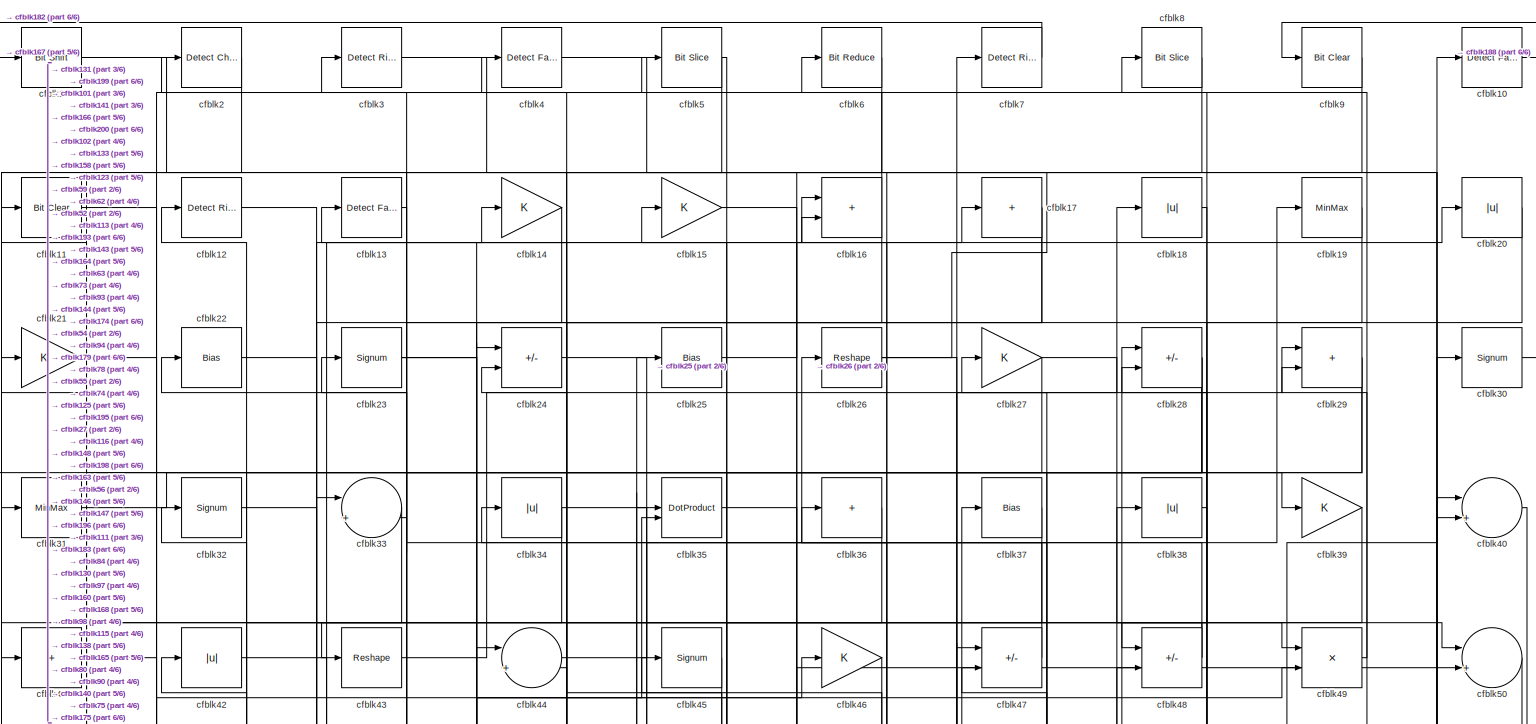
[diagram: root canvas - part 1/6, full width, top band]
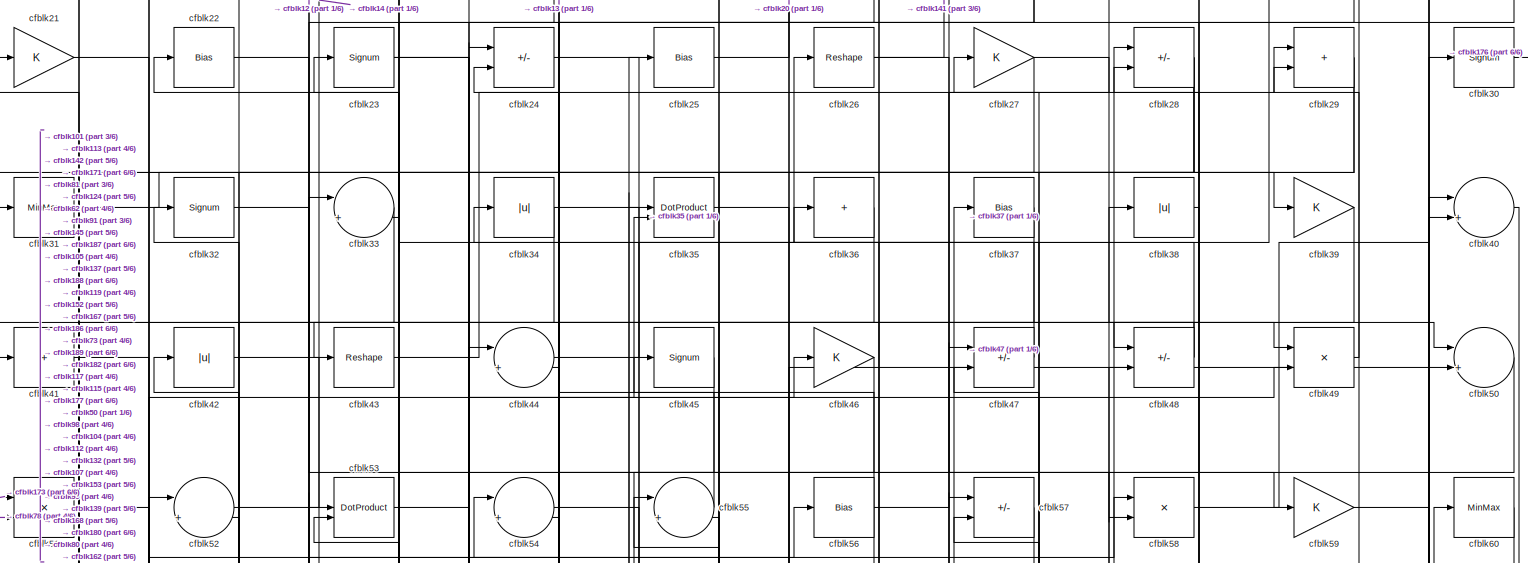
[diagram: root canvas - part 2/6, full width, top band]
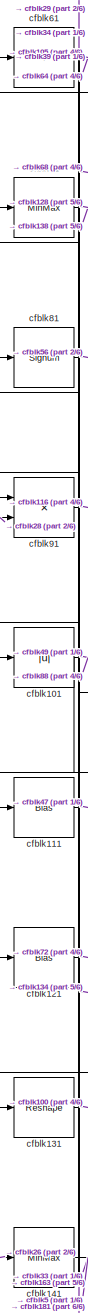
[diagram: root canvas - part 3/6, middle left region]
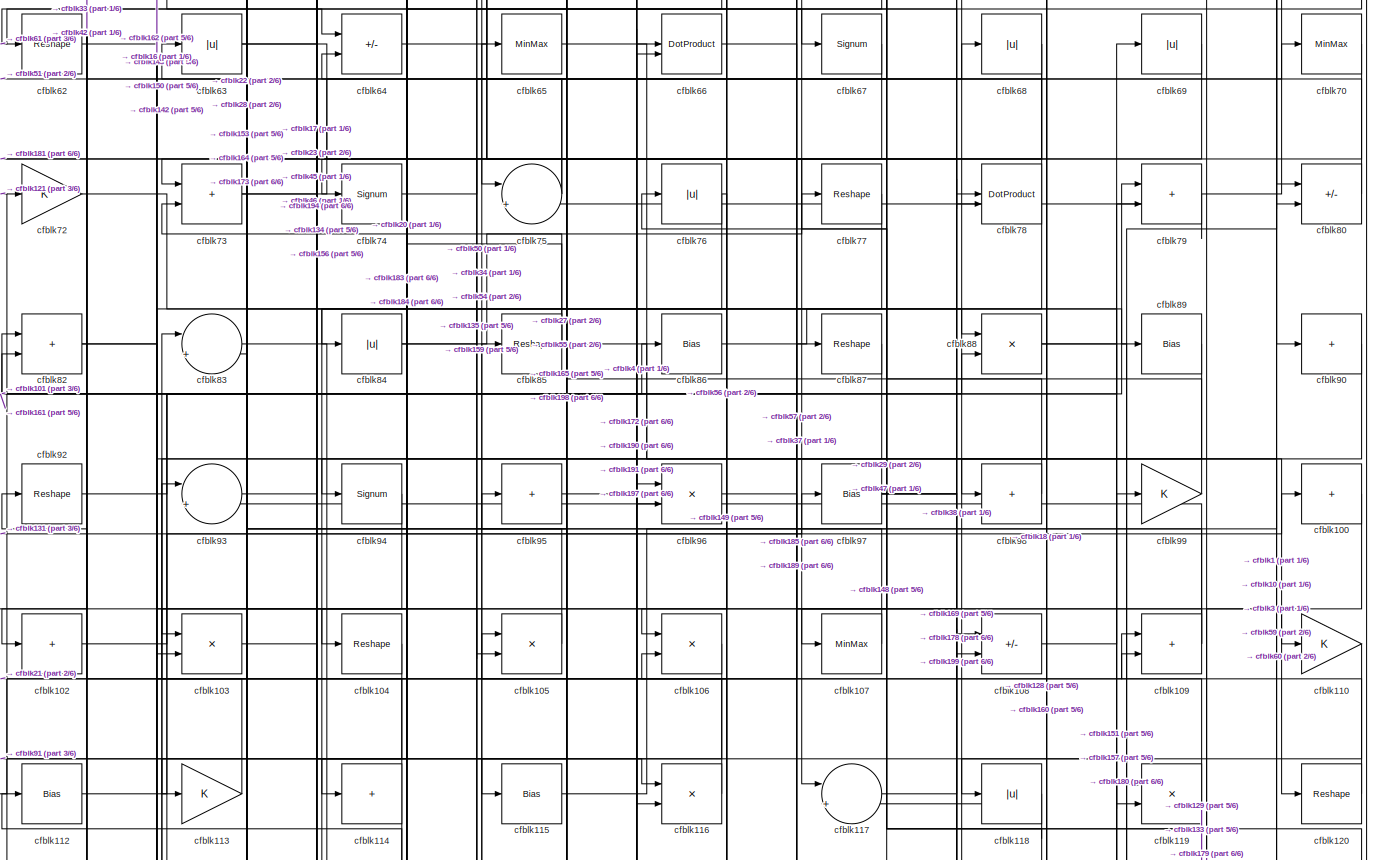
[diagram: root canvas - part 4/6, full width, middle band]
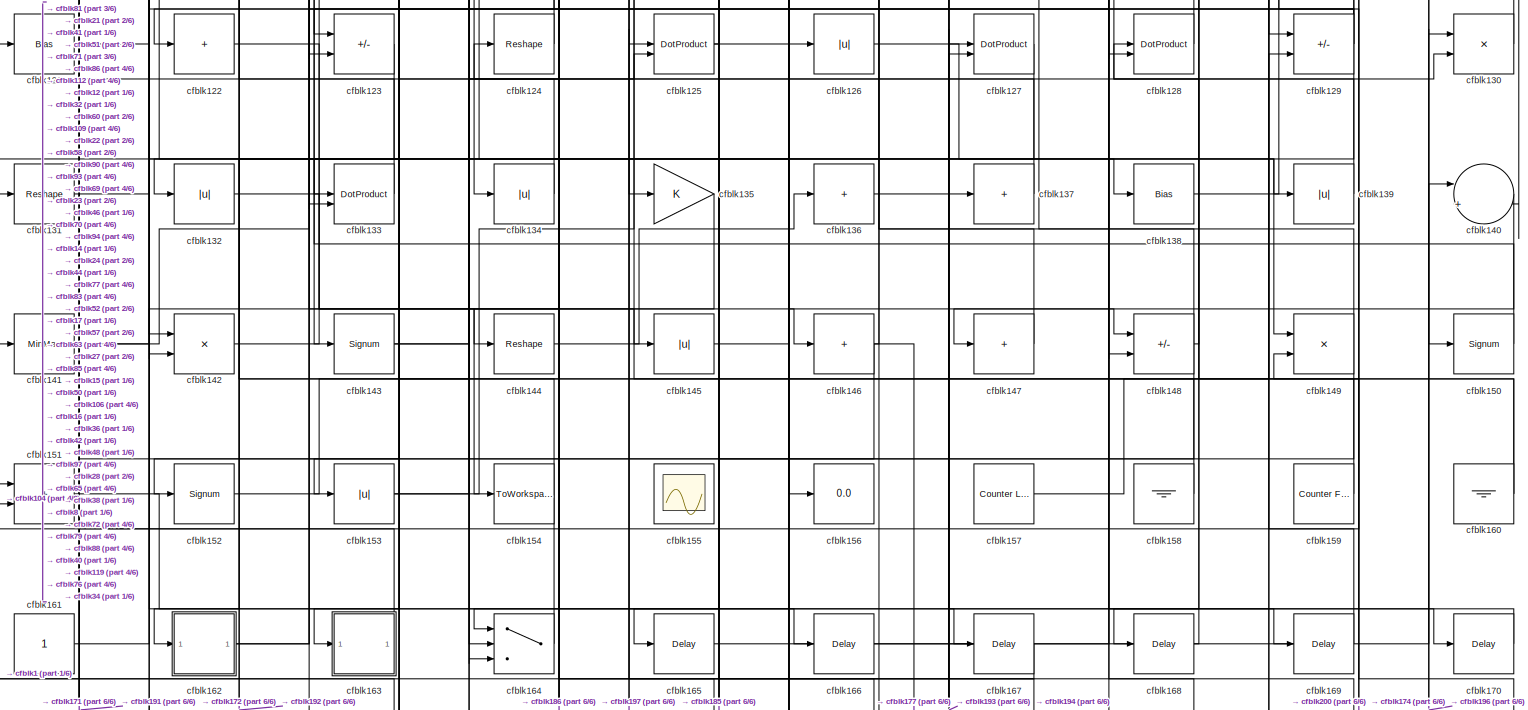
[diagram: root canvas - part 5/6, full width, bottom band]
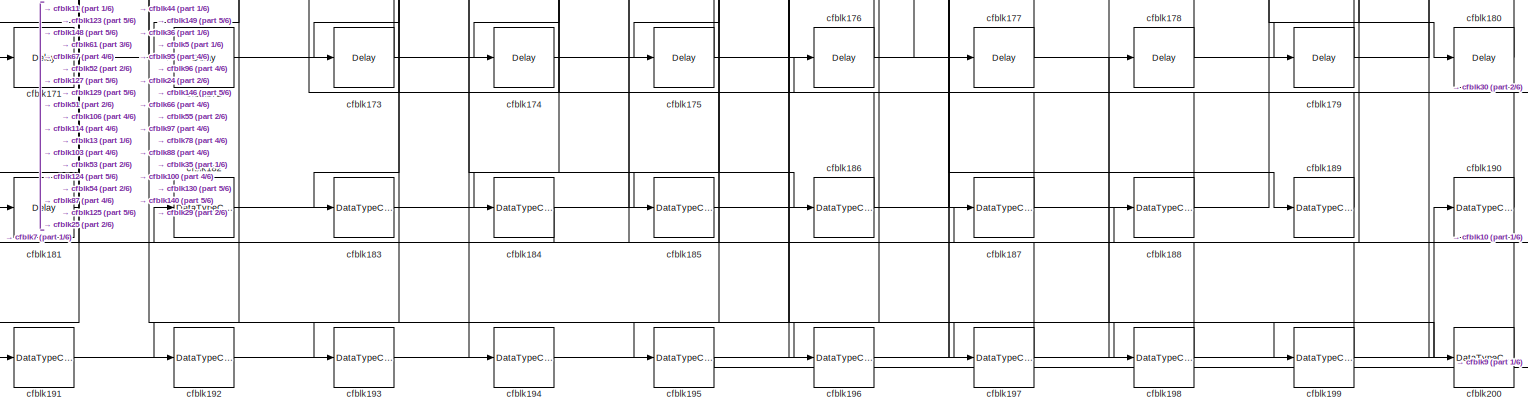
[diagram: root canvas - part 6/6, full width, bottom band]
MODEL slx_1e0d9b794514
KIND model
CONFIG AbsTol = auto
CONFIG EnableMultiTasking = off
CONFIG FixedStep = auto
CONFIG MaxStep = auto
CONFIG MinStep = auto
CONFIG RelTol = 1e-3
CONFIG SampleTimeConstraint = Unconstrained
CONFIG SolverName = VariableStepAuto
CONFIG StartTime = 0.0
CONFIG StopTime = 10.0
BLOCK [Reference] cfblk1  REF=hdlsllib/Logic and Bit
Operations/Bit Shift
  SourceBlock = hdlsllib/Logic and Bit\nOperations/Bit Shift
  SourceType = Bit Shift
BLOCK [Reference] cfblk10  REF=hdlsllib/Logic and Bit
Operations/Detect Fall
Nonpositive
  SourceBlock = hdlsllib/Logic and Bit\nOperations/Detect Fall\nNonpositive
  SourceType = Detect Fall Nonpositive
BLOCK [Sum] cfblk100
  IconShape = rectangular
  Inputs = +
BLOCK [Abs] cfblk101
  SaturateOnIntegerOverflow = off
BLOCK [Sum] cfblk102
  IconShape = rectangular
  Inputs = +
BLOCK [Product] cfblk103
  Inputs = */
  RndMeth = Zero
  SaturateOnIntegerOverflow = on
BLOCK [Reshape] cfblk104
BLOCK [Product] cfblk105
  Inputs = */
  RndMeth = Zero
  SaturateOnIntegerOverflow = on
BLOCK [Product] cfblk106
  Inputs = */
  RndMeth = Zero
  SaturateOnIntegerOverflow = on
BLOCK [MinMax] cfblk107
BLOCK [Sum] cfblk108
  IconShape = rectangular
  Inputs = +-
BLOCK [Sum] cfblk109
  IconShape = rectangular
BLOCK [Reference] cfblk11  REF=simulink/Logic and Bit
Operations/Bit Clear
  LibrarySourceBlock = hdlsllib/Logic and Bit\nOperations/Bit Clear
  SourceBlock = simulink/Logic and Bit\nOperations/Bit Clear
  SourceType = Bit Clear
BLOCK [Gain] cfblk110
BLOCK [Bias] cfblk111
  Bias = 0.0
  SaturateOnIntegerOverflow = off
BLOCK [Bias] cfblk112
  Bias = 0.0
  SaturateOnIntegerOverflow = off
BLOCK [Gain] cfblk113
BLOCK [Sum] cfblk114
  IconShape = rectangular
  Inputs = +
BLOCK [Bias] cfblk115
  Bias = 0.0
  SaturateOnIntegerOverflow = off
BLOCK [Product] cfblk116
  Inputs = */
  RndMeth = Zero
  SaturateOnIntegerOverflow = on
BLOCK [Sum] cfblk117
  Inputs = |++
BLOCK [Abs] cfblk118
  SaturateOnIntegerOverflow = off
BLOCK [Product] cfblk119
  Inputs = */
  RndMeth = Zero
  SaturateOnIntegerOverflow = on
BLOCK [Reference] cfblk12  REF=hdlsllib/Logic and Bit
Operations/Detect Rise
Nonnegative
  SourceBlock = hdlsllib/Logic and Bit\nOperations/Detect Rise\nNonnegative
  SourceType = Detect Rise Nonnegative
BLOCK [Reshape] cfblk120
BLOCK [Bias] cfblk121
  Bias = 0.0
  SaturateOnIntegerOverflow = off
BLOCK [Sum] cfblk122
  IconShape = rectangular
  Inputs = +
BLOCK [Sum] cfblk123
  IconShape = rectangular
  Inputs = +-
BLOCK [Reshape] cfblk124
BLOCK [DotProduct] cfblk125
  OutDataTypeStr = Inherit: Inherit via internal rule
BLOCK [Abs] cfblk126
  SaturateOnIntegerOverflow = off
BLOCK [DotProduct] cfblk127
  OutDataTypeStr = Inherit: Inherit via internal rule
BLOCK [DotProduct] cfblk128
  OutDataTypeStr = Inherit: Inherit via internal rule
BLOCK [Sum] cfblk129
  IconShape = rectangular
  Inputs = +-
BLOCK [Reference] cfblk13  REF=hdlsllib/Logic and Bit
Operations/Detect Fall
Nonpositive
  SourceBlock = hdlsllib/Logic and Bit\nOperations/Detect Fall\nNonpositive
  SourceType = Detect Fall Nonpositive
BLOCK [Product] cfblk130
  Inputs = */
  RndMeth = Zero
  SaturateOnIntegerOverflow = on
BLOCK [Reshape] cfblk131
BLOCK [Abs] cfblk132
  SaturateOnIntegerOverflow = off
BLOCK [DotProduct] cfblk133
  OutDataTypeStr = Inherit: Inherit via internal rule
BLOCK [Abs] cfblk134
  SaturateOnIntegerOverflow = off
BLOCK [Gain] cfblk135
BLOCK [Sum] cfblk136
  IconShape = rectangular
  Inputs = +
BLOCK [Sum] cfblk137
  IconShape = rectangular
  Inputs = +
BLOCK [Bias] cfblk138
  Bias = 0.0
  SaturateOnIntegerOverflow = off
BLOCK [Abs] cfblk139
  SaturateOnIntegerOverflow = off
BLOCK [Gain] cfblk14
BLOCK [Sum] cfblk140
  Inputs = |++
BLOCK [MinMax] cfblk141
BLOCK [Product] cfblk142
  Inputs = */
  RndMeth = Zero
  SaturateOnIntegerOverflow = on
BLOCK [Signum] cfblk143
BLOCK [Reshape] cfblk144
BLOCK [Abs] cfblk145
  SaturateOnIntegerOverflow = off
BLOCK [Sum] cfblk146
  IconShape = rectangular
  Inputs = +
BLOCK [Sum] cfblk147
  IconShape = rectangular
  Inputs = +
BLOCK [Sum] cfblk148
  IconShape = rectangular
  Inputs = +-
BLOCK [Product] cfblk149
  Inputs = */
  RndMeth = Zero
  SaturateOnIntegerOverflow = on
BLOCK [Gain] cfblk15
BLOCK [Signum] cfblk150
BLOCK [Sum] cfblk151
  IconShape = rectangular
BLOCK [Signum] cfblk152
BLOCK [Abs] cfblk153
  SaturateOnIntegerOverflow = off
BLOCK [ToWorkspace] cfblk154
  MaxDataPoints = inf
  SampleTime = -1
  SaveFormat = Timeseries
  VariableName = simout
BLOCK [Scope] cfblk155
  Floating = on
  NumInputPorts = 1
  ScopeSpecificationString = Simulink.scopes.TimeScopeBlockCfg('CurrentConfiguration', extmgr.ConfigurationSet(extmgr.Configuration('Core','General UI',true,'FigureColor',[0.156862745098039 0.156862745098039 0.156862745098039]),extmgr.Configuration('Core','Source UI',true),extmgr.Configuration('Sources','WiredSimulink',true,'DataLoggingVariableName','ScopeData1','DataLoggingSaveFormat','StructureWithTime','DataLoggingLimitDat...<+2713ch>
BLOCK [Display] cfblk156
  Decimation = 1
BLOCK [Reference] cfblk157  REF=hdlsllib/Sources/Counter
Limited
  SourceBlock = hdlsllib/Sources/Counter\nLimited
  SourceType = Counter Limited
BLOCK [Ground] cfblk158
BLOCK [Reference] cfblk159  REF=hdlsllib/Sources/Counter
Free-Running
  SourceBlock = hdlsllib/Sources/Counter\nFree-Running
  SourceType = Counter Free-Running
BLOCK [Sum] cfblk16
  IconShape = rectangular
BLOCK [Ground] cfblk160
BLOCK [Constant] cfblk161
  SampleTime = -1
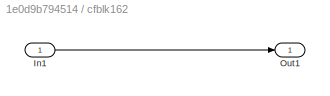
BLOCK [SubSystem] cfblk162
  LibrarySourceBlock = hdlsllib/Ports &\nSubsystems/Subsystem
BLOCK [Inport] cfblk162/In1
BLOCK [Outport] cfblk162/Out1
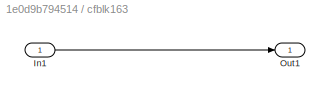
BLOCK [SubSystem] cfblk163
  LibrarySourceBlock = hdlsllib/Ports &\nSubsystems/Subsystem
BLOCK [Inport] cfblk163/In1
BLOCK [Outport] cfblk163/Out1
BLOCK [Switch] cfblk164
  InputSameDT = off
  SaturateOnIntegerOverflow = off
BLOCK [Delay] cfblk165
  InputPortMap = u0
  SampleTime = 1
BLOCK [Delay] cfblk166
  InputPortMap = u0
  SampleTime = 1
BLOCK [Delay] cfblk167
  InputPortMap = u0
  SampleTime = 1
BLOCK [Delay] cfblk168
  InputPortMap = u0
  SampleTime = 1
BLOCK [Delay] cfblk169
  InputPortMap = u0
  SampleTime = 1
BLOCK [Sum] cfblk17
  IconShape = rectangular
  Inputs = +
BLOCK [Delay] cfblk170
  InputPortMap = u0
  SampleTime = 1
BLOCK [Delay] cfblk171
  InputPortMap = u0
  SampleTime = 1
BLOCK [Delay] cfblk172
  InputPortMap = u0
  SampleTime = 1
BLOCK [Delay] cfblk173
  InputPortMap = u0
  SampleTime = 1
BLOCK [Delay] cfblk174
  InputPortMap = u0
  SampleTime = 1
BLOCK [Delay] cfblk175
  InputPortMap = u0
  SampleTime = 1
BLOCK [Delay] cfblk176
  InputPortMap = u0
  SampleTime = 1
BLOCK [Delay] cfblk177
  InputPortMap = u0
  SampleTime = 1
BLOCK [Delay] cfblk178
  InputPortMap = u0
  SampleTime = 1
BLOCK [Delay] cfblk179
  InputPortMap = u0
  SampleTime = 1
BLOCK [Abs] cfblk18
  SaturateOnIntegerOverflow = off
BLOCK [Delay] cfblk180
  InputPortMap = u0
  SampleTime = 1
BLOCK [Delay] cfblk181
  InputPortMap = u0
  SampleTime = 1
BLOCK [DataTypeConversion] cfblk182
  OutDataTypeStr = uint8
  RndMeth = Floor
  SaturateOnIntegerOverflow = off
BLOCK [DataTypeConversion] cfblk183
  OutDataTypeStr = uint8
  RndMeth = Floor
  SaturateOnIntegerOverflow = off
BLOCK [DataTypeConversion] cfblk184
  OutDataTypeStr = uint8
  RndMeth = Floor
  SaturateOnIntegerOverflow = off
BLOCK [DataTypeConversion] cfblk185
  OutDataTypeStr = uint8
  RndMeth = Floor
  SaturateOnIntegerOverflow = off
BLOCK [DataTypeConversion] cfblk186
  RndMeth = Floor
  SaturateOnIntegerOverflow = off
BLOCK [DataTypeConversion] cfblk187
  OutDataTypeStr = uint8
  RndMeth = Floor
  SaturateOnIntegerOverflow = off
BLOCK [DataTypeConversion] cfblk188
  OutDataTypeStr = uint8
  RndMeth = Floor
  SaturateOnIntegerOverflow = off
BLOCK [DataTypeConversion] cfblk189
  OutDataTypeStr = uint8
  RndMeth = Floor
  SaturateOnIntegerOverflow = off
BLOCK [MinMax] cfblk19
BLOCK [DataTypeConversion] cfblk190
  OutDataTypeStr = uint8
  RndMeth = Floor
  SaturateOnIntegerOverflow = off
BLOCK [DataTypeConversion] cfblk191
  OutDataTypeStr = uint8
  RndMeth = Floor
  SaturateOnIntegerOverflow = off
BLOCK [DataTypeConversion] cfblk192
  RndMeth = Floor
  SaturateOnIntegerOverflow = off
BLOCK [DataTypeConversion] cfblk193
  OutDataTypeStr = uint8
  RndMeth = Floor
  SaturateOnIntegerOverflow = off
BLOCK [DataTypeConversion] cfblk194
  OutDataTypeStr = uint8
  RndMeth = Floor
  SaturateOnIntegerOverflow = off
BLOCK [DataTypeConversion] cfblk195
  OutDataTypeStr = boolean
  RndMeth = Floor
  SaturateOnIntegerOverflow = off
BLOCK [DataTypeConversion] cfblk196
  OutDataTypeStr = uint8
  RndMeth = Floor
  SaturateOnIntegerOverflow = off
BLOCK [DataTypeConversion] cfblk197
  OutDataTypeStr = uint8
  RndMeth = Floor
  SaturateOnIntegerOverflow = off
BLOCK [DataTypeConversion] cfblk198
  OutDataTypeStr = uint8
  RndMeth = Floor
  SaturateOnIntegerOverflow = off
BLOCK [DataTypeConversion] cfblk199
  OutDataTypeStr = boolean
  RndMeth = Floor
  SaturateOnIntegerOverflow = off
BLOCK [Reference] cfblk2  REF=simulink/Logic and Bit
Operations/Detect
Change
  LibrarySourceBlock = hdlsllib/Logic and Bit\nOperations/Detect\nChange
  SourceBlock = simulink/Logic and Bit\nOperations/Detect\nChange
  SourceType = Detect Change
BLOCK [Abs] cfblk20
  SaturateOnIntegerOverflow = off
BLOCK [DataTypeConversion] cfblk200
  OutDataTypeStr = uint8
  RndMeth = Floor
  SaturateOnIntegerOverflow = off
BLOCK [Gain] cfblk21
BLOCK [Bias] cfblk22
  Bias = 0.0
  SaturateOnIntegerOverflow = off
BLOCK [Signum] cfblk23
BLOCK [Sum] cfblk24
  IconShape = rectangular
  Inputs = +-
BLOCK [Bias] cfblk25
  Bias = 0.0
  SaturateOnIntegerOverflow = off
BLOCK [Reshape] cfblk26
BLOCK [Gain] cfblk27
BLOCK [Sum] cfblk28
  IconShape = rectangular
  Inputs = +-
BLOCK [Sum] cfblk29
  IconShape = rectangular
BLOCK [Reference] cfblk3  REF=hdlsllib/Logic and Bit
Operations/Detect Rise
Nonnegative
  SourceBlock = hdlsllib/Logic and Bit\nOperations/Detect Rise\nNonnegative
  SourceType = Detect Rise Nonnegative
BLOCK [Signum] cfblk30
BLOCK [MinMax] cfblk31
BLOCK [Signum] cfblk32
BLOCK [Sum] cfblk33
  Inputs = |++
BLOCK [Abs] cfblk34
  SaturateOnIntegerOverflow = off
BLOCK [DotProduct] cfblk35
  OutDataTypeStr = Inherit: Inherit via internal rule
BLOCK [Sum] cfblk36
  IconShape = rectangular
  Inputs = +
BLOCK [Bias] cfblk37
  Bias = 0.0
  SaturateOnIntegerOverflow = off
BLOCK [Abs] cfblk38
  SaturateOnIntegerOverflow = off
BLOCK [Gain] cfblk39
BLOCK [Reference] cfblk4  REF=hdlsllib/Logic and Bit
Operations/Detect Fall
Nonpositive
  SourceBlock = hdlsllib/Logic and Bit\nOperations/Detect Fall\nNonpositive
  SourceType = Detect Fall Nonpositive
BLOCK [Sum] cfblk40
  Inputs = |++
BLOCK [Sum] cfblk41
  IconShape = rectangular
  Inputs = +
BLOCK [Abs] cfblk42
  SaturateOnIntegerOverflow = off
BLOCK [Reshape] cfblk43
BLOCK [Sum] cfblk44
  Inputs = |++
BLOCK [Signum] cfblk45
BLOCK [Gain] cfblk46
BLOCK [Sum] cfblk47
  IconShape = rectangular
  Inputs = +-
BLOCK [Sum] cfblk48
  IconShape = rectangular
  Inputs = +-
BLOCK [Product] cfblk49
  Inputs = */
  RndMeth = Zero
  SaturateOnIntegerOverflow = on
BLOCK [Reference] cfblk5  REF=hdlsllib/Logic and Bit
Operations/Bit Slice
  SourceBlock = hdlsllib/Logic and Bit\nOperations/Bit Slice
  SourceType = Bit Slice
BLOCK [Sum] cfblk50
  Inputs = |++
BLOCK [Product] cfblk51
  Inputs = */
  RndMeth = Zero
  SaturateOnIntegerOverflow = on
BLOCK [Sum] cfblk52
  Inputs = |++
BLOCK [DotProduct] cfblk53
  OutDataTypeStr = Inherit: Inherit via internal rule
BLOCK [Sum] cfblk54
  Inputs = |++
BLOCK [Sum] cfblk55
  Inputs = |++
BLOCK [Bias] cfblk56
  Bias = 0.0
  SaturateOnIntegerOverflow = off
BLOCK [Sum] cfblk57
  IconShape = rectangular
  Inputs = +-
BLOCK [Product] cfblk58
  Inputs = */
  RndMeth = Zero
  SaturateOnIntegerOverflow = on
BLOCK [Gain] cfblk59
BLOCK [Reference] cfblk6  REF=hdlsllib/Logic and Bit
Operations/Bit Reduce
  SourceBlock = hdlsllib/Logic and Bit\nOperations/Bit Reduce
  SourceType = Bit Reduce
BLOCK [MinMax] cfblk60
BLOCK [Sum] cfblk61
  IconShape = rectangular
  Inputs = +
BLOCK [Reshape] cfblk62
BLOCK [Abs] cfblk63
  SaturateOnIntegerOverflow = off
BLOCK [Sum] cfblk64
  IconShape = rectangular
  Inputs = +-
BLOCK [MinMax] cfblk65
BLOCK [DotProduct] cfblk66
  OutDataTypeStr = Inherit: Inherit via internal rule
BLOCK [Signum] cfblk67
BLOCK [Abs] cfblk68
  SaturateOnIntegerOverflow = off
BLOCK [Abs] cfblk69
  SaturateOnIntegerOverflow = off
BLOCK [Reference] cfblk7  REF=hdlsllib/Logic and Bit
Operations/Detect Rise
Nonnegative
  SourceBlock = hdlsllib/Logic and Bit\nOperations/Detect Rise\nNonnegative
  SourceType = Detect Rise Nonnegative
BLOCK [MinMax] cfblk70
BLOCK [MinMax] cfblk71
BLOCK [Gain] cfblk72
BLOCK [Sum] cfblk73
  IconShape = rectangular
BLOCK [Signum] cfblk74
BLOCK [Sum] cfblk75
  Inputs = |++
BLOCK [Abs] cfblk76
  SaturateOnIntegerOverflow = off
BLOCK [Reshape] cfblk77
BLOCK [DotProduct] cfblk78
  OutDataTypeStr = Inherit: Inherit via internal rule
BLOCK [Sum] cfblk79
  IconShape = rectangular
BLOCK [Reference] cfblk8  REF=hdlsllib/Logic and Bit
Operations/Bit Slice
  SourceBlock = hdlsllib/Logic and Bit\nOperations/Bit Slice
  SourceType = Bit Slice
BLOCK [Sum] cfblk80
  IconShape = rectangular
  Inputs = +-
BLOCK [Signum] cfblk81
BLOCK [Sum] cfblk82
  IconShape = rectangular
BLOCK [Sum] cfblk83
  Inputs = |++
BLOCK [Abs] cfblk84
  SaturateOnIntegerOverflow = off
BLOCK [Reshape] cfblk85
BLOCK [Bias] cfblk86
  Bias = 0.0
  SaturateOnIntegerOverflow = off
BLOCK [Reshape] cfblk87
BLOCK [Product] cfblk88
  Inputs = */
  RndMeth = Zero
  SaturateOnIntegerOverflow = on
BLOCK [Bias] cfblk89
  Bias = 0.0
  SaturateOnIntegerOverflow = off
BLOCK [Reference] cfblk9  REF=simulink/Logic and Bit
Operations/Bit Clear
  LibrarySourceBlock = hdlsllib/Logic and Bit\nOperations/Bit Clear
  SourceBlock = simulink/Logic and Bit\nOperations/Bit Clear
  SourceType = Bit Clear
BLOCK [Sum] cfblk90
  IconShape = rectangular
  Inputs = +
BLOCK [Product] cfblk91
  Inputs = */
  RndMeth = Zero
  SaturateOnIntegerOverflow = on
BLOCK [Reshape] cfblk92
BLOCK [Sum] cfblk93
  Inputs = |++
BLOCK [Signum] cfblk94
BLOCK [Sum] cfblk95
  IconShape = rectangular
  Inputs = +
BLOCK [Product] cfblk96
  Inputs = */
  RndMeth = Zero
  SaturateOnIntegerOverflow = on
BLOCK [Bias] cfblk97
  Bias = 0.0
  SaturateOnIntegerOverflow = off
BLOCK [Sum] cfblk98
  IconShape = rectangular
  Inputs = +
BLOCK [Gain] cfblk99
LINE cfblk100:1 -> cfblk179:1
NET cfblk101:1 -> cfblk121:1, cfblk49:2, cfblk88:2
LINE cfblk102:1 -> cfblk97:1
LINE cfblk103:1 -> cfblk194:1
LINE cfblk104:1 -> cfblk151:2
LINE cfblk105:1 -> cfblk22:1
LINE cfblk106:1 -> cfblk173:1
LINE cfblk107:1 -> cfblk82:1
LINE cfblk108:1 -> cfblk99:1
NET cfblk109:1 -> cfblk103:1, cfblk82:2, cfblk93:2
LINE cfblk10:1 -> cfblk188:1
LINE cfblk110:1 -> cfblk118:1
LINE cfblk111:1 -> cfblk47:1
LINE cfblk112:1 -> cfblk57:1
LINE cfblk113:1 -> cfblk21:1
NET cfblk114:1 -> cfblk183:1, cfblk92:1
LINE cfblk115:1 -> cfblk10:1
LINE cfblk116:1 -> cfblk105:1
LINE cfblk117:1 -> cfblk108:1
LINE cfblk118:1 -> cfblk117:2
NET cfblk119:1 -> cfblk133:2, cfblk83:1
LINE cfblk11:1 -> cfblk200:1
LINE cfblk120:1 -> cfblk109:1
LINE cfblk121:1 -> cfblk72:1
LINE cfblk122:1 -> cfblk154:1
LINE cfblk123:1 -> cfblk171:1
LINE cfblk124:1 -> cfblk52:2
NET cfblk125:1 -> cfblk15:1, cfblk50:2
LINE cfblk126:1 -> cfblk149:1
LINE cfblk127:1 -> cfblk192:1
LINE cfblk128:1 -> cfblk65:1
NET cfblk129:1 -> cfblk122:1, cfblk123:1, cfblk172:1, cfblk76:1
LINE cfblk12:1 -> cfblk59:1
LINE cfblk130:1 -> cfblk34:1
LINE cfblk131:1 -> cfblk100:1
LINE cfblk132:1 -> cfblk146:1
LINE cfblk133:1 -> cfblk12:1
LINE cfblk134:1 -> cfblk71:1
LINE cfblk135:1 -> cfblk142:2
LINE cfblk136:1 -> cfblk170:1
LINE cfblk137:1 -> cfblk23:1
LINE cfblk138:1 -> cfblk40:2
LINE cfblk139:1 -> cfblk28:1
LINE cfblk13:1 -> cfblk193:1
LINE cfblk140:1 -> cfblk147:1
NET cfblk141:1 -> cfblk33:1, cfblk5:1
LINE cfblk142:1 -> cfblk69:1
NET cfblk143:1 -> cfblk130:2, cfblk44:1
LINE cfblk144:1 -> cfblk136:1
LINE cfblk145:1 -> cfblk126:1
NET cfblk146:1 -> cfblk152:1, cfblk16:1, cfblk177:1
LINE cfblk147:1 -> cfblk36:1
NET cfblk148:1 -> cfblk128:1, cfblk191:1, cfblk77:1
NET cfblk149:1 -> cfblk106:2, cfblk185:1
LINE cfblk14:1 -> cfblk164:3
LINE cfblk150:1 -> cfblk93:1
LINE cfblk151:1 -> cfblk164:2
LINE cfblk152:1 -> cfblk24:1
NET cfblk153:1 -> cfblk125:2, cfblk27:1
LINE cfblk157:1 -> cfblk79:2
LINE cfblk158:1 -> cfblk32:1
LINE cfblk159:1 -> cfblk85:1
LINE cfblk15:1 -> cfblk148:1
NET cfblk160:1 -> cfblk112:1, cfblk8:1
LINE cfblk161:1 -> cfblk86:1
LINE cfblk162/In1:1 -> cfblk162/Out1:1
NET cfblk162:1 -> cfblk109:2, cfblk58:1
LINE cfblk163/In1:1 -> cfblk163/Out1:1
LINE cfblk163:1 -> cfblk81:1
LINE cfblk164:1 -> cfblk63:1
LINE cfblk165:1 -> cfblk40:1
LINE cfblk166:1 -> cfblk48:2
LINE cfblk167:1 -> cfblk1:1
LINE cfblk168:1 -> cfblk28:2
LINE cfblk169:1 -> cfblk119:1
NET cfblk16:1 -> cfblk113:1, cfblk2:1
LINE cfblk170:1 -> cfblk164:1
LINE cfblk171:1 -> cfblk52:1
LINE cfblk172:1 -> cfblk96:1
LINE cfblk173:1 -> cfblk51:1
LINE cfblk174:1 -> cfblk140:1
LINE cfblk175:1 -> cfblk44:2
LINE cfblk176:1 -> cfblk24:2
LINE cfblk177:1 -> cfblk55:2
LINE cfblk178:1 -> cfblk78:1
LINE cfblk179:1 -> cfblk35:1
NET cfblk17:1 -> cfblk123:2, cfblk144:1
LINE cfblk180:1 -> cfblk29:2
LINE cfblk181:1 -> cfblk61:1
LINE cfblk182:1 -> cfblk25:1
LINE cfblk183:1 -> cfblk7:1
LINE cfblk184:1 -> cfblk187:1
LINE cfblk185:1 -> cfblk87:1
NET cfblk186:1 -> cfblk124:1, cfblk129:2
LINE cfblk187:1 -> cfblk53:1
LINE cfblk188:1 -> cfblk53:2
LINE cfblk189:1 -> cfblk54:1
LINE cfblk18:1 -> cfblk98:1
LINE cfblk190:1 -> cfblk66:1
LINE cfblk191:1 -> cfblk66:2
NET cfblk192:1 -> cfblk178:1, cfblk190:1
LINE cfblk193:1 -> cfblk127:1
LINE cfblk194:1 -> cfblk127:2
LINE cfblk195:1 -> cfblk9:1
LINE cfblk196:1 -> cfblk130:1
LINE cfblk197:1 -> cfblk125:1
LINE cfblk198:1 -> cfblk95:1
LINE cfblk199:1 -> cfblk11:1
LINE cfblk19:1 -> cfblk48:1
LINE cfblk1:1 -> cfblk90:1
LINE cfblk200:1 -> cfblk149:2
LINE cfblk20:1 -> cfblk94:1
LINE cfblk21:1 -> cfblk142:1
LINE cfblk22:1 -> cfblk145:1
NET cfblk23:1 -> cfblk119:2, cfblk167:1
LINE cfblk24:1 -> cfblk137:1
LINE cfblk25:1 -> cfblk20:1
NET cfblk26:1 -> cfblk141:1, cfblk58:2
NET cfblk27:1 -> cfblk115:1, cfblk50:1
NET cfblk28:1 -> cfblk62:1, cfblk73:1, cfblk91:2
NET cfblk29:1 -> cfblk101:1, cfblk107:1
LINE cfblk2:1 -> cfblk41:1
LINE cfblk30:1 -> cfblk176:1
LINE cfblk31:1 -> cfblk39:1
LINE cfblk32:1 -> cfblk49:1
LINE cfblk33:1 -> cfblk102:1
NET cfblk34:1 -> cfblk111:1, cfblk78:2
LINE cfblk35:1 -> cfblk198:1
LINE cfblk36:1 -> cfblk195:1
LINE cfblk37:1 -> cfblk54:2
LINE cfblk38:1 -> cfblk168:1
LINE cfblk39:1 -> cfblk131:1
LINE cfblk3:1 -> cfblk80:1
LINE cfblk40:1 -> cfblk140:2
LINE cfblk41:1 -> cfblk166:1
LINE cfblk42:1 -> cfblk148:2
LINE cfblk43:1 -> cfblk18:1
LINE cfblk44:1 -> cfblk19:1
LINE cfblk45:1 -> cfblk74:1
LINE cfblk46:1 -> cfblk163:1
LINE cfblk47:1 -> cfblk26:1
NET cfblk48:1 -> cfblk3:1, cfblk43:1
LINE cfblk49:1 -> cfblk6:1
LINE cfblk4:1 -> cfblk116:2
LINE cfblk50:1 -> cfblk75:1
LINE cfblk51:1 -> cfblk139:1
LINE cfblk52:1 -> cfblk14:1
LINE cfblk53:1 -> cfblk186:1
LINE cfblk54:1 -> cfblk117:1
LINE cfblk55:1 -> cfblk35:2
NET cfblk56:1 -> cfblk104:1, cfblk13:1, cfblk29:1
LINE cfblk57:1 -> cfblk132:1
LINE cfblk58:1 -> cfblk30:1
LINE cfblk59:1 -> cfblk80:2
NET cfblk5:1 -> cfblk174:1, cfblk175:1
LINE cfblk60:1 -> cfblk162:1
NET cfblk61:1 -> cfblk105:2, cfblk64:1
LINE cfblk62:1 -> cfblk16:2
NET cfblk63:1 -> cfblk135:1, cfblk17:1
LINE cfblk64:1 -> cfblk67:1
LINE cfblk65:1 -> cfblk150:1
LINE cfblk66:1 -> cfblk189:1
LINE cfblk67:1 -> cfblk181:1
NET cfblk68:1 -> cfblk84:1, cfblk91:1
LINE cfblk69:1 -> cfblk165:1
LINE cfblk6:1 -> cfblk31:1
LINE cfblk70:1 -> cfblk133:1
NET cfblk71:1 -> cfblk128:2, cfblk138:1
LINE cfblk72:1 -> cfblk129:1
NET cfblk73:1 -> cfblk45:1, cfblk60:1
LINE cfblk74:1 -> cfblk68:1
NET cfblk75:1 -> cfblk42:1, cfblk4:1
NET cfblk76:1 -> cfblk106:1, cfblk83:2
LINE cfblk77:1 -> cfblk134:1
NET cfblk78:1 -> cfblk103:2, cfblk51:2
NET cfblk79:1 -> cfblk70:1, cfblk75:2
LINE cfblk7:1 -> cfblk182:1
LINE cfblk80:1 -> cfblk47:2
LINE cfblk81:1 -> cfblk56:1
NET cfblk82:1 -> cfblk108:2, cfblk96:2
LINE cfblk83:1 -> cfblk156:1
NET cfblk84:1 -> cfblk37:1, cfblk88:1
NET cfblk85:1 -> cfblk120:1, cfblk64:2, cfblk73:2
LINE cfblk86:1 -> cfblk89:1
LINE cfblk87:1 -> cfblk184:1
NET cfblk88:1 -> cfblk151:1, cfblk180:1
LINE cfblk89:1 -> cfblk114:1
LINE cfblk8:1 -> cfblk33:2
LINE cfblk90:1 -> cfblk143:1
LINE cfblk91:1 -> cfblk116:1
LINE cfblk92:1 -> cfblk79:1
LINE cfblk93:1 -> cfblk46:1
LINE cfblk94:1 -> cfblk153:1
LINE cfblk95:1 -> cfblk197:1
LINE cfblk96:1 -> cfblk110:1
NET cfblk97:1 -> cfblk169:1, cfblk199:1, cfblk38:1
LINE cfblk98:1 -> cfblk55:1
LINE cfblk99:1 -> cfblk57:2
LINE cfblk9:1 -> cfblk196:1
note: NET lines group one-source signal fan-out (src -> all destinations, sorted); 1:1 wires keep LINE
